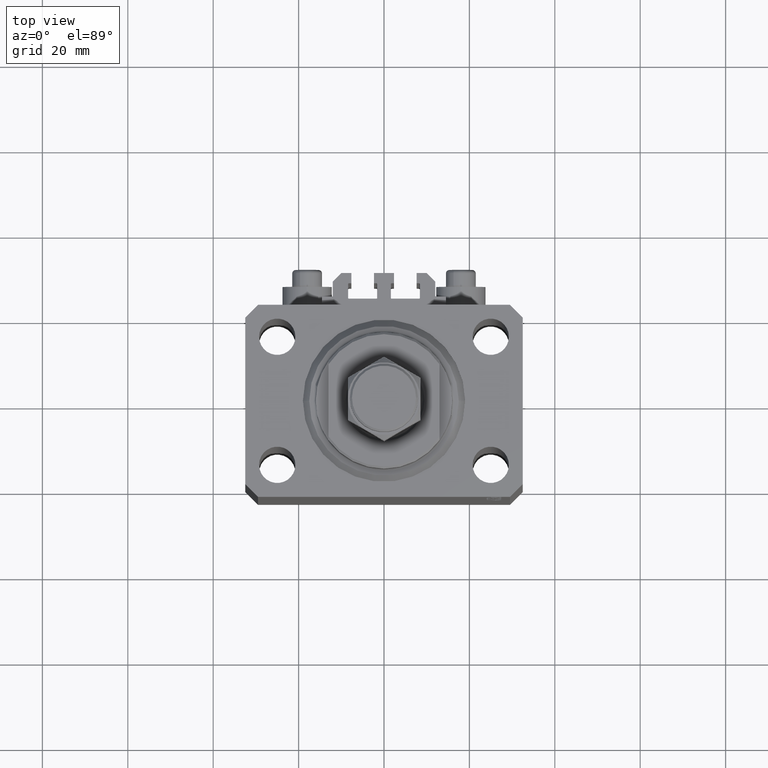
[diagram: clean part render]
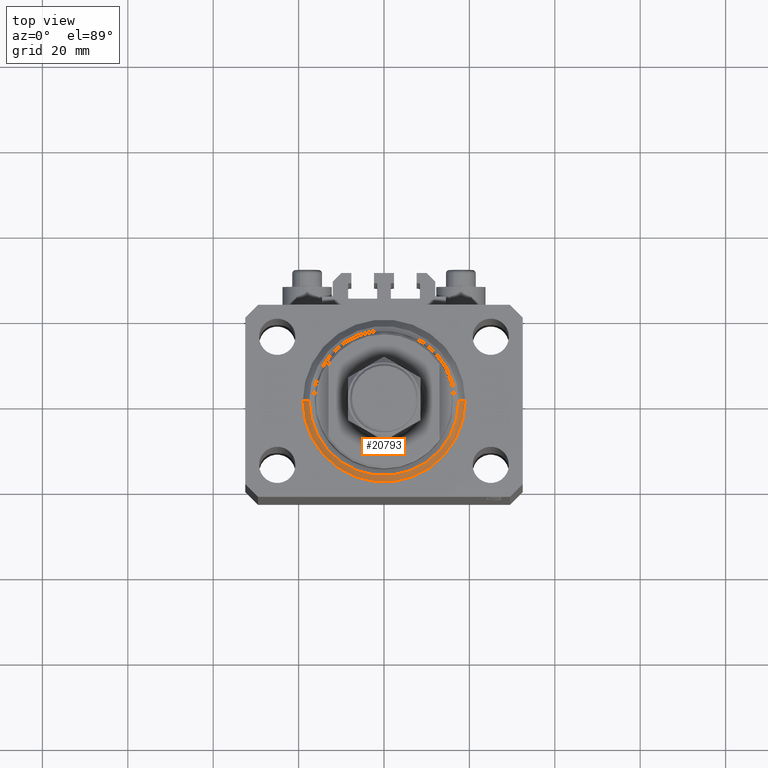
[diagram: same view with one face highlighted and labeled with its STEP entity id]
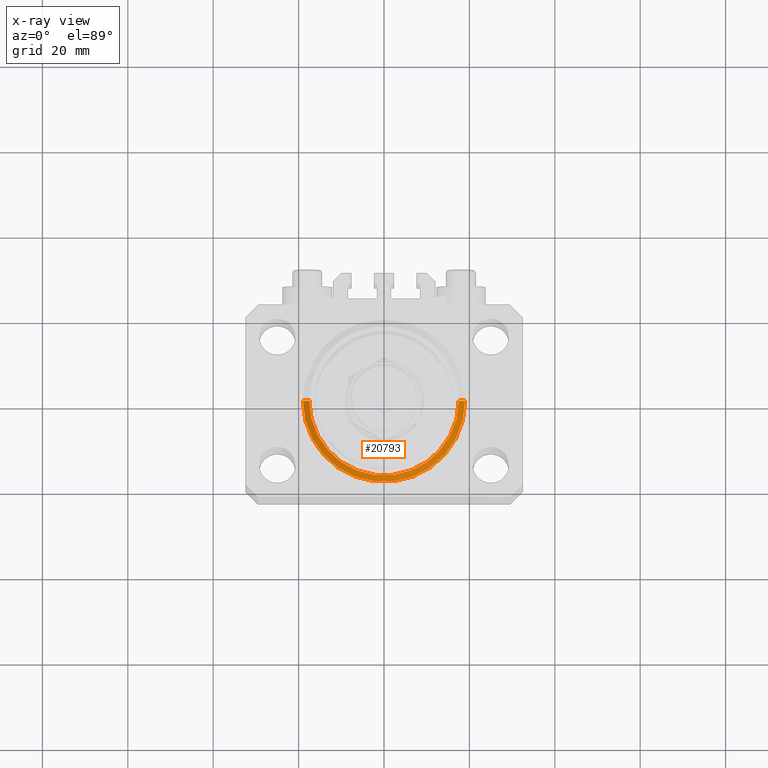
[diagram: x-ray of the same camera — body ghosted, the highlighted face saturated]
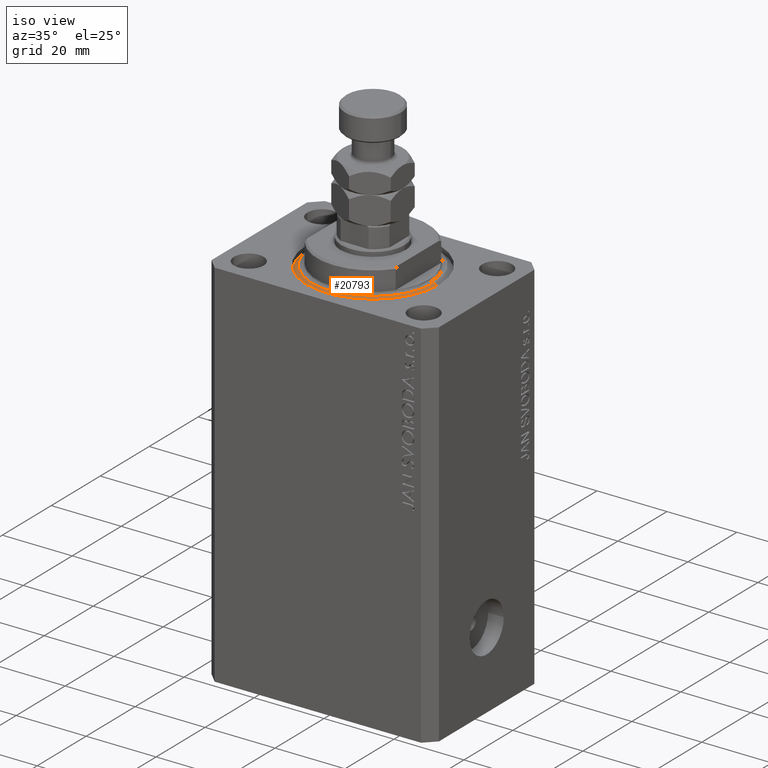
[diagram: same view with one face highlighted and labeled with its STEP entity id]
A machine part, top view. The second image highlights one B-rep face of the part: STEP entity #20793.
The next image is the same camera in x-ray: the body ghosted, the highlighted face saturated — about 0% of this face is hidden behind the body in this view.
A second angle (iso view) of the same face is appended — the face is thin or edge-on in the first view.
In plain terms, the highlighted conical surface has half-angle 45 deg.
Its self-contained STEP definition (entity closure, byte-faithful):
#746 = VERTEX_POINT ( 'NONE', #8516 ) ;
#3673 = ORIENTED_EDGE ( 'NONE', *, *, #43163, .F. ) ;
#3938 = VECTOR ( 'NONE', #6686, 1000.000000000000000 ) ;
#6686 = DIRECTION ( 'NONE',  ( 0.7071067811865483499, 0.000000000000000000, 0.7071067811865467956 ) ) ;
#8064 = VERTEX_POINT ( 'NONE', #17340 ) ;
#8516 = CARTESIAN_POINT ( 'NONE',  ( 17.49999999999999289, 0.000000000000000000, 0.000000000000000000 ) ) ;
#8964 = ORIENTED_EDGE ( 'NONE', *, *, #33659, .F. ) ;
#9891 = EDGE_LOOP ( 'NONE', ( #3673, #25794, #11661, #8964 ) ) ;
#11279 = CARTESIAN_POINT ( 'NONE',  ( -19.00000000000000000, 2.326828918379970970E-15, 1.500000000000004885 ) ) ;
#11661 = ORIENTED_EDGE ( 'NONE', *, *, #40182, .T. ) ;
#12711 = CARTESIAN_POINT ( 'NONE',  ( 0.000000000000000000, 0.000000000000000000, 1.500000000000004885 ) ) ;
#13004 = DIRECTION ( 'NONE',  ( -0.000000000000000000, -0.000000000000000000, -1.000000000000000000 ) ) ;
#16917 = AXIS2_PLACEMENT_3D ( 'NONE', #27961, #27461, #47012 ) ;
#17340 = CARTESIAN_POINT ( 'NONE',  ( -19.00000000000000000, 0.000000000000000000, 1.500000000000004885 ) ) ;
#17491 = AXIS2_PLACEMENT_3D ( 'NONE', #20925, #13004, #43430 ) ;
#18234 = DIRECTION ( 'NONE',  ( -0.7071067811865483499, 8.659560562354943952E-17, 0.7071067811865467956 ) ) ;
#20793 = ADVANCED_FACE ( 'NONE', ( #23513 ), #32738, .T. ) ;
#20925 = CARTESIAN_POINT ( 'NONE',  ( 0.000000000000000000, 0.000000000000000000, 0.000000000000000000 ) ) ;
#23513 = FACE_OUTER_BOUND ( 'NONE', #9891, .T. ) ;
#25655 = LINE ( 'NONE', #11279, #40364 ) ;
#25794 = ORIENTED_EDGE ( 'NONE', *, *, #25820, .F. ) ;
#25820 = EDGE_CURVE ( 'NONE', #746, #30061, #36450, .T. ) ;
#27461 = DIRECTION ( 'NONE',  ( -0.000000000000000000, -0.000000000000000000, 1.000000000000000000 ) ) ;
#27961 = CARTESIAN_POINT ( 'NONE',  ( 0.000000000000000000, 0.000000000000000000, 1.500000000000004885 ) ) ;
#28225 = CARTESIAN_POINT ( 'NONE',  ( 19.00000000000000000, 0.000000000000000000, 1.500000000000004885 ) ) ;
#30061 = VERTEX_POINT ( 'NONE', #40678 ) ;
#31496 = CIRCLE ( 'NONE', #44930, 19.00000000000000000 ) ;
#32738 = CONICAL_SURFACE ( 'NONE', #16917, 19.00000000000000000, 0.7853981633974492782 ) ;
#33659 = EDGE_CURVE ( 'NONE', #8064, #35209, #31496, .T. ) ;
#35209 = VERTEX_POINT ( 'NONE', #46318 ) ;
#36450 = CIRCLE ( 'NONE', #17491, 17.49999999999999289 ) ;
#40182 = EDGE_CURVE ( 'NONE', #746, #35209, #40596, .T. ) ;
#40364 = VECTOR ( 'NONE', #18234, 1000.000000000000000 ) ;
#40596 = LINE ( 'NONE', #28225, #3938 ) ;
#40678 = CARTESIAN_POINT ( 'NONE',  ( -17.49999999999999289, 2.234980408443919215E-15, 0.000000000000000000 ) ) ;
#42904 = DIRECTION ( 'NONE',  ( 1.000000000000000000, 0.000000000000000000, 0.000000000000000000 ) ) ;
#43163 = EDGE_CURVE ( 'NONE', #30061, #8064, #25655, .T. ) ;
#43430 = DIRECTION ( 'NONE',  ( 1.000000000000000000, 0.000000000000000000, 0.000000000000000000 ) ) ;
#44930 = AXIS2_PLACEMENT_3D ( 'NONE', #12711, #46866, #42904 ) ;
#46318 = CARTESIAN_POINT ( 'NONE',  ( 19.00000000000000000, 2.326828918379970970E-15, 1.500000000000004885 ) ) ;
#46866 = DIRECTION ( 'NONE',  ( -0.000000000000000000, -0.000000000000000000, 1.000000000000000000 ) ) ;
#47012 = DIRECTION ( 'NONE',  ( 1.000000000000000000, 0.000000000000000000, 0.000000000000000000 ) ) ;